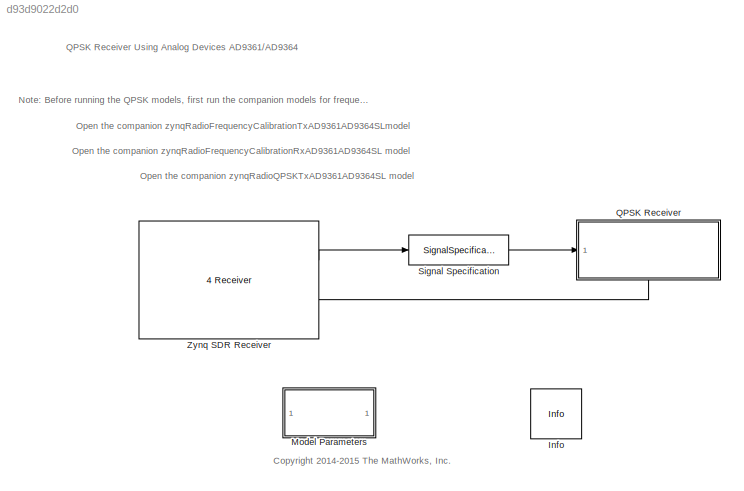
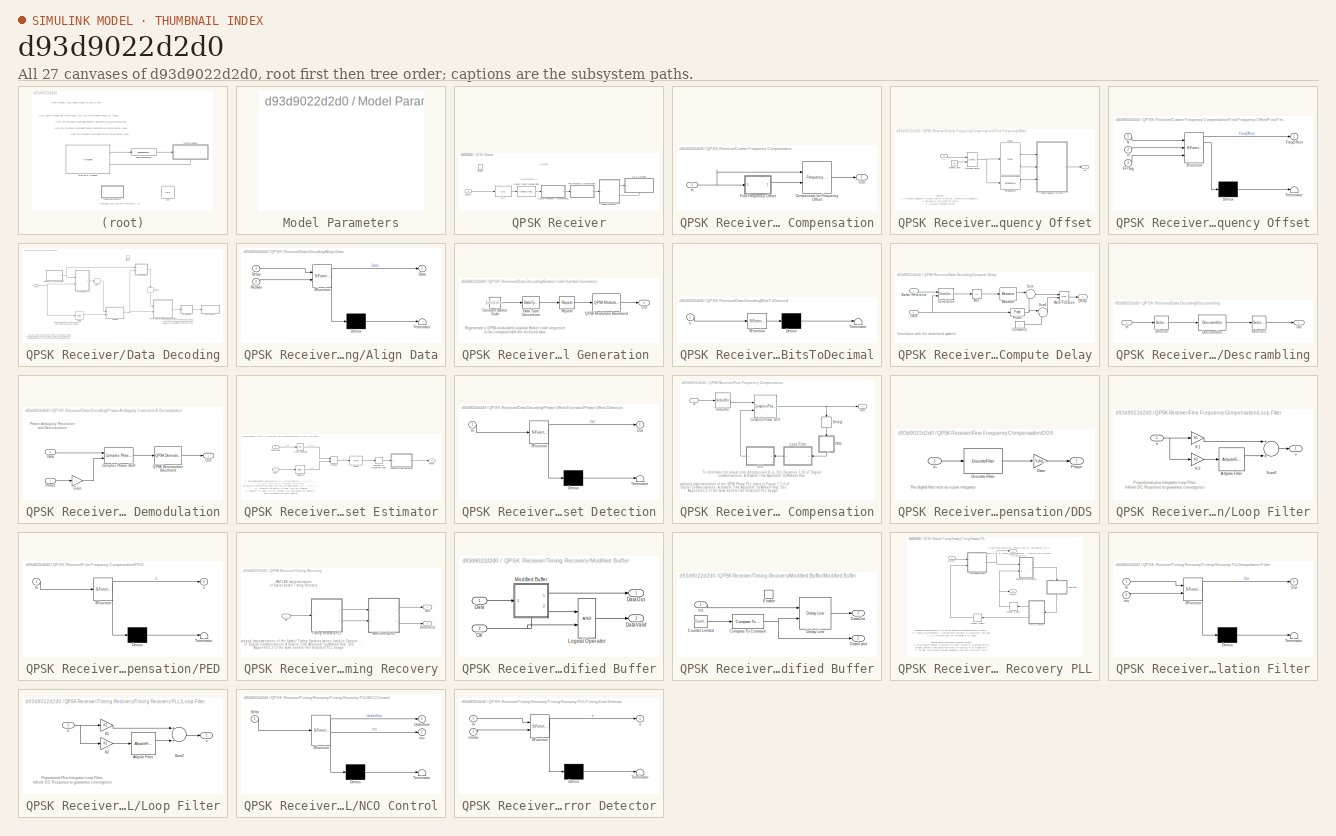
[diagram: thumbnail index - all 27 canvases of the model, root first then tree order]
MODEL slx_d93d9022d2d0
KIND model
CONFIG AbsTol = auto
CONFIG FixedStep = auto
CONFIG InitFcn = sdrqpskrx = zynqRadioQPSKRxAD9361AD9364SL_init;
CONFIG MaxStep = auto
CONFIG MinStep = auto
CONFIG PreLoadFcn = sdrqpskrx = zynqRadioQPSKRxAD9361AD9364SL_init;
CONFIG RelTol = 1e-3
CONFIG SampleTimeConstraint = Unconstrained
CONFIG Solver = FixedStepDiscrete
CONFIG SolverMode = SingleTasking
CONFIG SolverName = FixedStepDiscrete
CONFIG StartTime = 0.0
CONFIG StopTime = inf
BLOCK [Reference] Info  REF=sdrzblksprivate/Info
  Ports = []
  SourceBlock = sdrzblksprivate/Info
  SourceType = Info
BLOCK [SubSystem] Model Parameters
  Ports = []
  RequestExecContextInheritance = off
  Variant = off
BLOCK [SubSystem] QPSK Receiver
  Ports = [1, 0, 1]
  RequestExecContextInheritance = off
  Variant = off
BLOCK [Reference] QPSK Receiver/AGC  REF=commrfcorlib/AGC
  Ports = [1, 1]
  SourceBlock = commrfcorlib/AGC
  SourceType = AGC
BLOCK [SubSystem] QPSK Receiver/Coarse Frequency Compensation
  Ports = [1, 1]
  RequestExecContextInheritance = off
  Variant = off
BLOCK [Reference] QPSK Receiver/Coarse Frequency Compensation/Compensate for Frequency Offset  REF=commrflib2/Phase//
Frequency
Offset
  Ports = [2, 1]
  SourceBlock = commrflib2/Phase//\nFrequency\nOffset
  SourceType = Phase/Frequency Offset
BLOCK [SubSystem] QPSK Receiver/Coarse Frequency Compensation/Find Frequency Offset
  Ports = [1, 1]
  RequestExecContextInheritance = off
  Variant = off
BLOCK [Constant] QPSK Receiver/Coarse Frequency Compensation/Find Frequency Offset/Alphabet size
  OutDataTypeStr = Inherit: Inherit via back propagation
  Value = M
BLOCK [Reference] QPSK Receiver/Coarse Frequency Compensation/Find Frequency Offset/Complex Power  REF=commblksprivate/Complex Power
  Ports = [2, 1]
  SourceBlock = commblksprivate/Complex Power
  SourceType = Complex Power
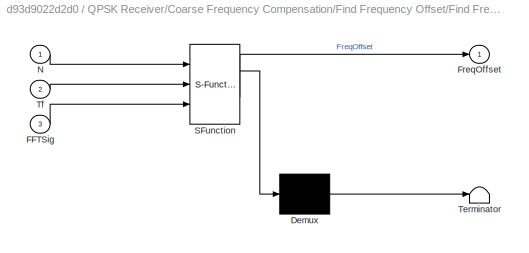
BLOCK [SubSystem] QPSK Receiver/Coarse Frequency Compensation/Find Frequency Offset/Find Frequency Offset
  ErrorFcn = Stateflow.Translate.translate
  PermitHierarchicalResolution = ExplicitOnly
  Ports = [3, 1]
  RequestExecContextInheritance = off
  SFBlockType = MATLAB Function
  TreatAsAtomicUnit = on
  Variant = off
BLOCK [Demux] QPSK Receiver/Coarse Frequency Compensation/Find Frequency Offset/Find Frequency Offset/ Demux 
  Outputs = 1
  Ports = [1, 1]
BLOCK [S-Function] QPSK Receiver/Coarse Frequency Compensation/Find Frequency Offset/Find Frequency Offset/ SFunction 
  EnableBusSupport = off
  FunctionName = sf_sfun
  Parameters = M
  PortCounts = [3 2]
  Ports = [3, 2]
  SFunctionDeploymentMode = off
  Tag = Stateflow S-Function zynqRadioQPSKRxAD9361AD9364SL 1
BLOCK [Terminator] QPSK Receiver/Coarse Frequency Compensation/Find Frequency Offset/Find Frequency Offset/ Terminator 
BLOCK [Inport] QPSK Receiver/Coarse Frequency Compensation/Find Frequency Offset/Find Frequency Offset/FFTSig
  IconDisplay = Port number
  Port = 3
BLOCK [Outport] QPSK Receiver/Coarse Frequency Compensation/Find Frequency Offset/Find Frequency Offset/FreqOffset
  IconDisplay = Port number
BLOCK [Inport] QPSK Receiver/Coarse Frequency Compensation/Find Frequency Offset/Find Frequency Offset/N
  IconDisplay = Port number
BLOCK [Inport] QPSK Receiver/Coarse Frequency Compensation/Find Frequency Offset/Find Frequency Offset/Tf
  IconDisplay = Port number
  Port = 2
BLOCK [Outport] QPSK Receiver/Coarse Frequency Compensation/Find Frequency Offset/Frq
  IconDisplay = Port number
BLOCK [Inport] QPSK Receiver/Coarse Frequency Compensation/Find Frequency Offset/In
  IconDisplay = Port number
BLOCK [Reference] QPSK Receiver/Coarse Frequency Compensation/Find Frequency Offset/Periodogram  REF=dspspect3/Periodogram
  Ports = [1, 1]
  SourceBlock = dspspect3/Periodogram
  SourceType = Periodogram
BLOCK [Probe] QPSK Receiver/Coarse Frequency Compensation/Find Frequency Offset/Probe
  Ports = [1, 2]
  ProbeComplexSignal = off
BLOCK [Inport] QPSK Receiver/Coarse Frequency Compensation/In
  IconDisplay = Port number
BLOCK [Outport] QPSK Receiver/Coarse Frequency Compensation/Out
  IconDisplay = Port number
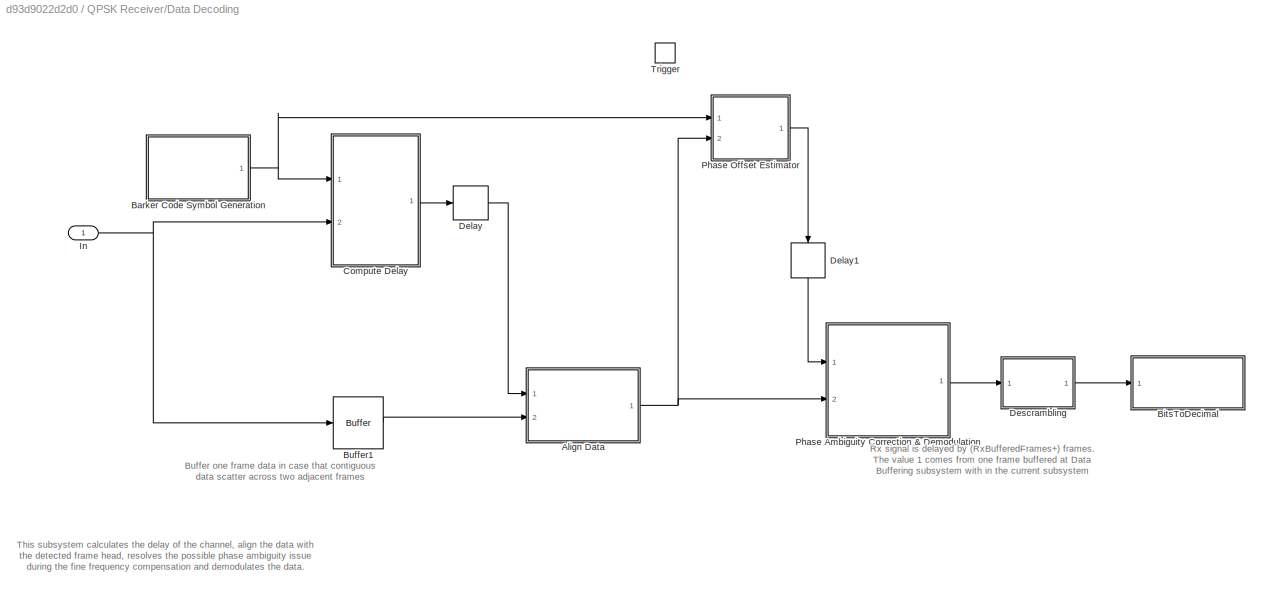
BLOCK [SubSystem] QPSK Receiver/Data Decoding
  Ports = [1, 0, 0, 1]
  RequestExecContextInheritance = off
  Variant = off
BLOCK [SubSystem] QPSK Receiver/Data Decoding/Align Data
  ErrorFcn = Stateflow.Translate.translate
  PermitHierarchicalResolution = ExplicitOnly
  Ports = [2, 1]
  RequestExecContextInheritance = off
  SFBlockType = MATLAB Function
  TreatAsAtomicUnit = on
  Variant = off
BLOCK [Demux] QPSK Receiver/Data Decoding/Align Data/ Demux 
  Outputs = 1
  Ports = [1, 1]
BLOCK [S-Function] QPSK Receiver/Data Decoding/Align Data/ SFunction 
  EnableBusSupport = off
  FunctionName = sf_sfun
  PortCounts = [2 2]
  Ports = [2, 2]
  SFunctionDeploymentMode = off
  Tag = Stateflow S-Function zynqRadioQPSKRxAD9361AD9364SL 2
BLOCK [Terminator] QPSK Receiver/Data Decoding/Align Data/ Terminator 
BLOCK [Outport] QPSK Receiver/Data Decoding/Align Data/Data
  IconDisplay = Port number
BLOCK [Inport] QPSK Receiver/Data Decoding/Align Data/Delay
  IconDisplay = Port number
BLOCK [Inport] QPSK Receiver/Data Decoding/Align Data/RxData
  IconDisplay = Port number
  Port = 2
BLOCK [SubSystem] QPSK Receiver/Data Decoding/Barker Code Symbol Generation 
  Ports = [0, 1]
  RequestExecContextInheritance = off
  Variant = off
BLOCK [Constant] QPSK Receiver/Data Decoding/Barker Code Symbol Generation /Constant Barker Code
  Value = [+1 +1 +1 +1 +1 -1 -1 +1 +1 -1 +1 -1 +1\n].' > 0
  VectorParams1D = off
BLOCK [DataTypeConversion] QPSK Receiver/Data Decoding/Barker Code Symbol Generation /Data Type Conversion
  OutDataTypeStr = double
  RndMeth = Floor
  SaturateOnIntegerOverflow = off
BLOCK [Outport] QPSK Receiver/Data Decoding/Barker Code Symbol Generation /Out
  IconDisplay = Port number
BLOCK [Reference] QPSK Receiver/Data Decoding/Barker Code Symbol Generation /QPSK Modulator Baseband  REF=commdigbbndpm3/QPSK
Modulator
Baseband
  Ports = [1, 1]
  SourceBlock = commdigbbndpm3/QPSK\nModulator\nBaseband
  SourceType = QPSK Modulator Baseband
BLOCK [Reference] QPSK Receiver/Data Decoding/Barker Code Symbol Generation /Repeat  REF=dspsigops/Repeat
  Ports = [1, 1]
  SourceBlock = dspsigops/Repeat
  SourceType = Repeat
  UserDataPersistent = on
BLOCK [SubSystem] QPSK Receiver/Data Decoding/BitsToDecimal
  ErrorFcn = Stateflow.Translate.translate
  PermitHierarchicalResolution = ExplicitOnly
  Ports = [1]
  RequestExecContextInheritance = off
  SFBlockType = MATLAB Function
  TreatAsAtomicUnit = on
  Variant = off
BLOCK [Demux] QPSK Receiver/Data Decoding/BitsToDecimal/ Demux 
  Outputs = 1
  Ports = [1, 1]
BLOCK [S-Function] QPSK Receiver/Data Decoding/BitsToDecimal/ SFunction 
  EnableBusSupport = off
  FunctionName = sf_sfun
  PortCounts = [1 1]
  Ports = [1, 1]
  SFunctionDeploymentMode = off
  Tag = Stateflow S-Function zynqRadioQPSKRxAD9361AD9364SL 5
BLOCK [Terminator] QPSK Receiver/Data Decoding/BitsToDecimal/ Terminator 
BLOCK [Inport] QPSK Receiver/Data Decoding/BitsToDecimal/u
  IconDisplay = Port number
BLOCK [Buffer] QPSK Receiver/Data Decoding/Buffer1
  N = sdrqpskrx.FrameSize*2
  OutputFrames = off
  TreatMby1Signals = One channel
  V = sdrqpskrx.FrameSize
BLOCK [SubSystem] QPSK Receiver/Data Decoding/Compute Delay
  Ports = [2, 1]
  RequestExecContextInheritance = off
  Variant = off
BLOCK [Abs] QPSK Receiver/Data Decoding/Compute Delay/Abs
  SaturateOnIntegerOverflow = off
BLOCK [Inport] QPSK Receiver/Data Decoding/Compute Delay/Barker Reference
  IconDisplay = Port number
BLOCK [Constant] QPSK Receiver/Data Decoding/Compute Delay/Constant1
  FramePeriod = 2
  OutDataTypeStr = Inherit: Inherit via back propagation
  VectorParams1D = off
BLOCK [Reference] QPSK Receiver/Data Decoding/Compute Delay/Correlation  REF=dspstat3/Correlation
  Ports = [2, 1]
  SourceBlock = dspstat3/Correlation
  SourceType = Correlation
BLOCK [Inport] QPSK Receiver/Data Decoding/Compute Delay/Data
  IconDisplay = Port number
  Port = 2
BLOCK [Outport] QPSK Receiver/Data Decoding/Compute Delay/Delay
  IconDisplay = Port number
BLOCK [Math] QPSK Receiver/Data Decoding/Compute Delay/Math Function
  Operator = mod
  Ports = [2, 1]
BLOCK [Reference] QPSK Receiver/Data Decoding/Compute Delay/Maximum  REF=dspstat3/Maximum
  Ports = [1, 1]
  SourceBlock = dspstat3/Maximum
  SourceType = Maximum
  UserDataPersistent = on
BLOCK [Probe] QPSK Receiver/Data Decoding/Compute Delay/Probe
  Ports = [1, 1]
  ProbeComplexSignal = off
  ProbeSampleTime = off
BLOCK [Sum] QPSK Receiver/Data Decoding/Compute Delay/Sum
  IconShape = round
  Inputs = |-+
  Ports = [2, 1]
BLOCK [Sum] QPSK Receiver/Data Decoding/Compute Delay/Sum1
  IconShape = round
  Inputs = |+-
  Ports = [2, 1]
BLOCK [Delay] QPSK Receiver/Data Decoding/Delay
  DelayLength = 1
  InputPortMap = u0
  Ports = [1, 1]
BLOCK [Delay] QPSK Receiver/Data Decoding/Delay1
  DelayLength = 1
  InputPortMap = u0
  Ports = [1, 1]
BLOCK [SubSystem] QPSK Receiver/Data Decoding/Descrambling
  Ports = [1, 1]
  RequestExecContextInheritance = off
  Variant = off
BLOCK [Reference] QPSK Receiver/Data Decoding/Descrambling/Descrambler  REF=commsequence2/Descrambler
  Ports = [1, 1]
  SourceBlock = commsequence2/Descrambler
  SourceType = Descrambler
BLOCK [Inport] QPSK Receiver/Data Decoding/Descrambling/In
  IconDisplay = Port number
BLOCK [Outport] QPSK Receiver/Data Decoding/Descrambling/Out
  IconDisplay = Port number
BLOCK [Selector] QPSK Receiver/Data Decoding/Descrambling/Selector
  IndexOptions = Index vector (dialog)
  Indices = [sdrqpskrx.BarkerLength*log2(sdrqpskrx.M)+1:sdrqpskrx.FrameSize*log2(sdrqpskrx.M)]
  OutputSizes = 1
  Ports = [1, 1]
BLOCK [Selector] QPSK Receiver/Data Decoding/Descrambling/Selector1
  IndexOptions = Index vector (dialog)
  Indices = [1:sdrqpskrx.MsgLength]
  OutputSizes = 1
  Ports = [1, 1]
BLOCK [Inport] QPSK Receiver/Data Decoding/In
  IconDisplay = Port number
BLOCK [SubSystem] QPSK Receiver/Data Decoding/Phase Ambiguity Correction & Demodulation
  Ports = [2, 1]
  RequestExecContextInheritance = off
  Variant = off
BLOCK [Reference] QPSK Receiver/Data Decoding/Phase Ambiguity Correction & Demodulation/Complex Phase Shift  REF=commutil2/Complex Phase
Shift
  Ports = [2, 1]
  SourceBlock = commutil2/Complex Phase\nShift
  SourceType = Complex Phase Shift
BLOCK [Inport] QPSK Receiver/Data Decoding/Phase Ambiguity Correction & Demodulation/Data
  IconDisplay = Port number
  Port = 2
BLOCK [Gain] QPSK Receiver/Data Decoding/Phase Ambiguity Correction & Demodulation/Gain
  Gain = -1
  OutDataTypeStr = Inherit: Inherit via internal rule
  ParamDataTypeStr = Inherit: Inherit via internal rule
  SaturateOnIntegerOverflow = off
BLOCK [Outport] QPSK Receiver/Data Decoding/Phase Ambiguity Correction & Demodulation/Out
  IconDisplay = Port number
BLOCK [Inport] QPSK Receiver/Data Decoding/Phase Ambiguity Correction & Demodulation/Phase
  IconDisplay = Port number
BLOCK [Reference] QPSK Receiver/Data Decoding/Phase Ambiguity Correction & Demodulation/QPSK Demodulator Baseband  REF=commdigbbndpm3/QPSK
Demodulator
Baseband
  Ports = [1, 1]
  SourceBlock = commdigbbndpm3/QPSK\nDemodulator\nBaseband
  SourceType = QPSK Demodulator Baseband
BLOCK [SubSystem] QPSK Receiver/Data Decoding/Phase Offset Estimator
  Ports = [2, 1]
  RequestExecContextInheritance = off
  Variant = off
BLOCK [Inport] QPSK Receiver/Data Decoding/Phase Offset Estimator/BarkerRef
  IconDisplay = Port number
BLOCK [ComplexToMagnitudeAngle] QPSK Receiver/Data Decoding/Phase Offset Estimator/Complex to Magnitude-Angle
  Output = Angle
  Ports = [1, 1]
BLOCK [Inport] QPSK Receiver/Data Decoding/Phase Offset Estimator/Data
  IconDisplay = Port number
  Port = 2
BLOCK [Math] QPSK Receiver/Data Decoding/Phase Offset Estimator/Math Function
  Operator = conj
  Ports = [1, 1]
BLOCK [Reference] QPSK Receiver/Data Decoding/Phase Offset Estimator/Mean  REF=dspstat3/Mean
  Ports = [1, 1]
  SourceBlock = dspstat3/Mean
  SourceType = Mean
  UserDataPersistent = on
BLOCK [Outport] QPSK Receiver/Data Decoding/Phase Offset Estimator/Phase
  IconDisplay = Port number
BLOCK [SubSystem] QPSK Receiver/Data Decoding/Phase Offset Estimator/Phase Offset Detection
  ErrorFcn = Stateflow.Translate.translate
  PermitHierarchicalResolution = ExplicitOnly
  Ports = [1, 1]
  RequestExecContextInheritance = off
  SFBlockType = MATLAB Function
  TreatAsAtomicUnit = on
  Variant = off
BLOCK [Demux] QPSK Receiver/Data Decoding/Phase Offset Estimator/Phase Offset Detection/ Demux 
  Outputs = 1
  Ports = [1, 1]
BLOCK [S-Function] QPSK Receiver/Data Decoding/Phase Offset Estimator/Phase Offset Detection/ SFunction 
  EnableBusSupport = off
  FunctionName = sf_sfun
  PortCounts = [1 2]
  Ports = [1, 2]
  SFunctionDeploymentMode = off
  Tag = Stateflow S-Function zynqRadioQPSKRxAD9361AD9364SL 6
BLOCK [Terminator] QPSK Receiver/Data Decoding/Phase Offset Estimator/Phase Offset Detection/ Terminator 
BLOCK [Inport] QPSK Receiver/Data Decoding/Phase Offset Estimator/Phase Offset Detection/In
  IconDisplay = Port number
BLOCK [Outport] QPSK Receiver/Data Decoding/Phase Offset Estimator/Phase Offset Detection/Out
  IconDisplay = Port number
BLOCK [Product] QPSK Receiver/Data Decoding/Phase Offset Estimator/Product
  InputSameDT = off
  OutDataTypeStr = Inherit: Inherit via internal rule
  Ports = [2, 1]
  SaturateOnIntegerOverflow = off
BLOCK [Selector] QPSK Receiver/Data Decoding/Phase Offset Estimator/Selector
  IndexOptions = Index vector (dialog)
  Indices = [1:sdrqpskrx.BarkerLength]
  OutputSizes = 1
  Ports = [1, 1]
BLOCK [TriggerPort] QPSK Receiver/Data Decoding/Trigger
  PortDimensions = 1
  Ports = []
  StatesWhenEnabling = held
  VariantControl = Variant
BLOCK [EnablePort] QPSK Receiver/Enable
  Ports = []
BLOCK [SubSystem] QPSK Receiver/Fine Frequency Compensation
  Ports = [1, 1]
  RequestExecContextInheritance = off
  Variant = off
BLOCK [Reference] QPSK Receiver/Fine Frequency Compensation/Complex Phase Shift  REF=commutil2/Complex Phase
Shift
  Ports = [2, 1]
  SourceBlock = commutil2/Complex Phase\nShift
  SourceType = Complex Phase Shift
BLOCK [SubSystem] QPSK Receiver/Fine Frequency Compensation/DDS
  Ports = [1, 1]
  RequestExecContextInheritance = off
  Variant = off
BLOCK [DiscreteFilter] QPSK Receiver/Fine Frequency Compensation/DDS/Discrete Filter
  Denominator = [1 -1]
  FilterStructure = Direct form II transposed
  InputPortMap = u0
  InputProcessing = Columns as channels (frame based)
  Numerator = [0 1]
  Ports = [1, 1]
  a0EqualsOne = on
BLOCK [Gain] QPSK Receiver/Fine Frequency Compensation/DDS/Gain
  Gain = -1*sdrqpskrx.FineFreqCompensateGain
  OutDataTypeStr = Inherit: Inherit via internal rule
  ParamDataTypeStr = Inherit: Inherit via internal rule
  SaturateOnIntegerOverflow = off
BLOCK [Inport] QPSK Receiver/Fine Frequency Compensation/DDS/In
  IconDisplay = Port number
BLOCK [Outport] QPSK Receiver/Fine Frequency Compensation/DDS/Phase
  IconDisplay = Port number
BLOCK [Delay] QPSK Receiver/Fine Frequency Compensation/Delay1
  DelayLength = 1
  InitialCondition = 0
  InputPortMap = u0
  InputProcessing = Columns as channels (frame based)
  Ports = [1, 1]
  UserDataPersistent = on
BLOCK [Inport] QPSK Receiver/Fine Frequency Compensation/In
  IconDisplay = Port number
BLOCK [SubSystem] QPSK Receiver/Fine Frequency Compensation/Loop Filter
  Ports = [1, 1]
  RequestExecContextInheritance = off
  Variant = off
BLOCK [AllpoleFilter] QPSK Receiver/Fine Frequency Compensation/Loop Filter/Allpole Filter
  AccumDataTypeStr = Inherit: Same as product output
  Coefficients = [1 -1]
  FilterStructure = Direct form transposed
  InputPortMap = u0
  OutDataTypeStr = Inherit: Same as accumulator
  OutputPortMap = o0
  Ports = [1, 1]
  ProductDataTypeStr = Inherit: Same as input
BLOCK [Gain] QPSK Receiver/Fine Frequency Compensation/Loop Filter/K1
  Gain = K1
  OutDataTypeStr = Inherit: Inherit via internal rule
  ParamDataTypeStr = Inherit: Inherit via internal rule
  SaturateOnIntegerOverflow = off
BLOCK [Gain] QPSK Receiver/Fine Frequency Compensation/Loop Filter/K2
  Gain = K2
  OutDataTypeStr = Inherit: Inherit via internal rule
  ParamDataTypeStr = Inherit: Inherit via internal rule
  SaturateOnIntegerOverflow = off
BLOCK [Sum] QPSK Receiver/Fine Frequency Compensation/Loop Filter/Sum2
  Ports = [2, 1]
BLOCK [Inport] QPSK Receiver/Fine Frequency Compensation/Loop Filter/e
  IconDisplay = Port number
BLOCK [Outport] QPSK Receiver/Fine Frequency Compensation/Loop Filter/v
  IconDisplay = Port number
BLOCK [Outport] QPSK Receiver/Fine Frequency Compensation/Out
  IconDisplay = Port number
BLOCK [SubSystem] QPSK Receiver/Fine Frequency Compensation/PED
  ErrorFcn = Stateflow.Translate.translate
  PermitHierarchicalResolution = ExplicitOnly
  Ports = [1, 1]
  RequestExecContextInheritance = off
  SFBlockType = MATLAB Function
  TreatAsAtomicUnit = on
  Variant = off
BLOCK [Demux] QPSK Receiver/Fine Frequency Compensation/PED/ Demux 
  Outputs = 1
  Ports = [1, 1]
BLOCK [S-Function] QPSK Receiver/Fine Frequency Compensation/PED/ SFunction 
  EnableBusSupport = off
  FunctionName = sf_sfun
  PortCounts = [1 2]
  Ports = [1, 2]
  SFunctionDeploymentMode = off
  Tag = Stateflow S-Function zynqRadioQPSKRxAD9361AD9364SL 7
BLOCK [Terminator] QPSK Receiver/Fine Frequency Compensation/PED/ Terminator 
BLOCK [Inport] QPSK Receiver/Fine Frequency Compensation/PED/In
  IconDisplay = Port number
BLOCK [Outport] QPSK Receiver/Fine Frequency Compensation/PED/e
  IconDisplay = Port number
BLOCK [Unbuffer] QPSK Receiver/Fine Frequency Compensation/Unbuffer
  Ports = [1, 1]
  SampleBasedProcessing = Same as frame based
BLOCK [Reference] QPSK Receiver/Raised Cosine Receive Filter  REF=commfilt2/Raised Cosine
Receive Filter
  Ports = [1, 1]
  SourceBlock = commfilt2/Raised Cosine\nReceive Filter
  SourceType = Raised Cosine Receive Filter
  UserDataPersistent = on
BLOCK [SubSystem] QPSK Receiver/Timing Recovery
  Ports = [1, 2]
  RequestExecContextInheritance = off
  Variant = off
BLOCK [Outport] QPSK Receiver/Timing Recovery/DataValid
  IconDisplay = Port number
  Port = 2
BLOCK [Inport] QPSK Receiver/Timing Recovery/In
  IconDisplay = Port number
BLOCK [SubSystem] QPSK Receiver/Timing Recovery/Modified Buffer
  Ports = [2, 2]
  RequestExecContextInheritance = off
  TreatAsAtomicUnit = on
  Variant = off
BLOCK [Inport] QPSK Receiver/Timing Recovery/Modified Buffer/Clk
  IconDisplay = Port number
  Port = 2
BLOCK [Inport] QPSK Receiver/Timing Recovery/Modified Buffer/Data
  IconDisplay = Port number
BLOCK [Outport] QPSK Receiver/Timing Recovery/Modified Buffer/DataOut
  IconDisplay = Port number
BLOCK [Outport] QPSK Receiver/Timing Recovery/Modified Buffer/DataValid
  IconDisplay = Port number
  Port = 2
BLOCK [Logic] QPSK Receiver/Timing Recovery/Modified Buffer/Logical Operator
  AllPortsSameDT = off
  OutDataTypeStr = boolean
  Ports = [2, 1]
BLOCK [SubSystem] QPSK Receiver/Timing Recovery/Modified Buffer/Modified Buffer
  Ports = [1, 2, 1]
  RequestExecContextInheritance = off
  Variant = off
BLOCK [Reference] QPSK Receiver/Timing Recovery/Modified Buffer/Modified Buffer/Compare To Constant  REF=simulink/Logic and Bit
Operations/Compare
To Constant
  Ports = [1, 1]
  SourceBlock = simulink/Logic and Bit\nOperations/Compare\nTo Constant
  SourceType = Compare To Constant
BLOCK [Reference] QPSK Receiver/Timing Recovery/Modified Buffer/Modified Buffer/Counter Limited  REF=simulink/Sources/Counter
Limited
  Ports = [0, 1]
  SourceBlock = simulink/Sources/Counter\nLimited
  SourceType = Counter Limited
BLOCK [Outport] QPSK Receiver/Timing Recovery/Modified Buffer/Modified Buffer/DataOut
  IconDisplay = Port number
BLOCK [Outport] QPSK Receiver/Timing Recovery/Modified Buffer/Modified Buffer/DataValid
  IconDisplay = Port number
  Port = 2
BLOCK [Reference] QPSK Receiver/Timing Recovery/Modified Buffer/Modified Buffer/Delay Line  REF=dspbuff3/Delay Line
  Ports = [2, 1]
  SourceBlock = dspbuff3/Delay Line
  SourceType = Delay Line
  UserDataPersistent = on
BLOCK [EnablePort] QPSK Receiver/Timing Recovery/Modified Buffer/Modified Buffer/Enable
  Ports = []
BLOCK [Inport] QPSK Receiver/Timing Recovery/Modified Buffer/Modified Buffer/In1
  IconDisplay = Port number
BLOCK [Outport] QPSK Receiver/Timing Recovery/Out
  IconDisplay = Port number
BLOCK [SubSystem] QPSK Receiver/Timing Recovery/Timing Recovery PLL
  Ports = [1, 2]
  RequestExecContextInheritance = off
  Variant = off
BLOCK [Outport] QPSK Receiver/Timing Recovery/Timing Recovery PLL/ClkOut
  IconDisplay = Port number
  Port = 2
BLOCK [Inport] QPSK Receiver/Timing Recovery/Timing Recovery PLL/DataIn
  IconDisplay = Port number
BLOCK [Outport] QPSK Receiver/Timing Recovery/Timing Recovery PLL/DataOut
  IconDisplay = Port number
BLOCK [Delay] QPSK Receiver/Timing Recovery/Timing Recovery PLL/Integer Delay1
  DelayLength = 1
  InputPortMap = u0
  InputProcessing = Inherited
  Ports = [1, 1]
  UserDataPersistent = on
BLOCK [Delay] QPSK Receiver/Timing Recovery/Timing Recovery PLL/Integer Delay2
  DelayLength = 1
  InputPortMap = u0
  InputProcessing = Inherited
  Ports = [1, 1]
  UserDataPersistent = on
BLOCK [SubSystem] QPSK Receiver/Timing Recovery/Timing Recovery PLL/Interpolation Filter
  ErrorFcn = Stateflow.Translate.translate
  PermitHierarchicalResolution = ExplicitOnly
  Ports = [2, 1]
  RequestExecContextInheritance = off
  SFBlockType = MATLAB Function
  TreatAsAtomicUnit = on
  Variant = off
BLOCK [Demux] QPSK Receiver/Timing Recovery/Timing Recovery PLL/Interpolation Filter/ Demux 
  Outputs = 1
  Ports = [1, 1]
BLOCK [S-Function] QPSK Receiver/Timing Recovery/Timing Recovery PLL/Interpolation Filter/ SFunction 
  EnableBusSupport = off
  FunctionName = sf_sfun
  PortCounts = [2 2]
  Ports = [2, 2]
  SFunctionDeploymentMode = off
  Tag = Stateflow S-Function zynqRadioQPSKRxAD9361AD9364SL 10
BLOCK [Terminator] QPSK Receiver/Timing Recovery/Timing Recovery PLL/Interpolation Filter/ Terminator 
BLOCK [Inport] QPSK Receiver/Timing Recovery/Timing Recovery PLL/Interpolation Filter/In
  IconDisplay = Port number
BLOCK [Outport] QPSK Receiver/Timing Recovery/Timing Recovery PLL/Interpolation Filter/Out
  IconDisplay = Port number
BLOCK [Inport] QPSK Receiver/Timing Recovery/Timing Recovery PLL/Interpolation Filter/mu
  IconDisplay = Port number
  Port = 2
BLOCK [SubSystem] QPSK Receiver/Timing Recovery/Timing Recovery PLL/Loop Filter
  Ports = [1, 1]
  RequestExecContextInheritance = off
  Variant = off
BLOCK [AllpoleFilter] QPSK Receiver/Timing Recovery/Timing Recovery PLL/Loop Filter/Allpole Filter
  AccumDataTypeStr = Inherit: Same as product output
  Coefficients = [1 -1]
  FilterStructure = Direct form transposed
  InputPortMap = u0
  OutDataTypeStr = Inherit: Same as accumulator
  OutputPortMap = o0
  Ports = [1, 1]
  ProductDataTypeStr = Inherit: Same as input
BLOCK [Gain] QPSK Receiver/Timing Recovery/Timing Recovery PLL/Loop Filter/K1
  Gain = K1
  OutDataTypeStr = Inherit: Inherit via internal rule
  ParamDataTypeStr = Inherit: Inherit via internal rule
  SaturateOnIntegerOverflow = off
BLOCK [Gain] QPSK Receiver/Timing Recovery/Timing Recovery PLL/Loop Filter/K2
  Gain = K2
  OutDataTypeStr = Inherit: Inherit via internal rule
  ParamDataTypeStr = Inherit: Inherit via internal rule
  SaturateOnIntegerOverflow = off
BLOCK [Sum] QPSK Receiver/Timing Recovery/Timing Recovery PLL/Loop Filter/Sum2
  Ports = [2, 1]
BLOCK [Inport] QPSK Receiver/Timing Recovery/Timing Recovery PLL/Loop Filter/e
  IconDisplay = Port number
BLOCK [Outport] QPSK Receiver/Timing Recovery/Timing Recovery PLL/Loop Filter/v
  IconDisplay = Port number
BLOCK [SubSystem] QPSK Receiver/Timing Recovery/Timing Recovery PLL/NCO Control
  ErrorFcn = Stateflow.Translate.translate
  PermitHierarchicalResolution = ExplicitOnly
  Ports = [1, 2]
  RequestExecContextInheritance = off
  SFBlockType = MATLAB Function
  Variant = off
BLOCK [Demux] QPSK Receiver/Timing Recovery/Timing Recovery PLL/NCO Control/ Demux 
  Outputs = 1
  Ports = [1, 1]
BLOCK [S-Function] QPSK Receiver/Timing Recovery/Timing Recovery PLL/NCO Control/ SFunction 
  EnableBusSupport = off
  FunctionName = sf_sfun
  Parameters = sdrqpskrx
  PortCounts = [1 3]
  Ports = [1, 3]
  SFunctionDeploymentMode = off
  Tag = Stateflow S-Function zynqRadioQPSKRxAD9361AD9364SL 11
BLOCK [Terminator] QPSK Receiver/Timing Recovery/Timing Recovery PLL/NCO Control/ Terminator 
BLOCK [Inport] QPSK Receiver/Timing Recovery/Timing Recovery PLL/NCO Control/Delta
  IconDisplay = Port number
BLOCK [Outport] QPSK Receiver/Timing Recovery/Timing Recovery PLL/NCO Control/Underflow
  IconDisplay = Port number
BLOCK [Outport] QPSK Receiver/Timing Recovery/Timing Recovery PLL/NCO Control/mu
  IconDisplay = Port number
  Port = 2
BLOCK [SubSystem] QPSK Receiver/Timing Recovery/Timing Recovery PLL/Timing Error Detector
  ErrorFcn = Stateflow.Translate.translate
  PermitHierarchicalResolution = ExplicitOnly
  Ports = [2, 1]
  RequestExecContextInheritance = off
  SFBlockType = MATLAB Function
  TreatAsAtomicUnit = on
  Variant = off
BLOCK [Demux] QPSK Receiver/Timing Recovery/Timing Recovery PLL/Timing Error Detector/ Demux 
  Outputs = 1
  Ports = [1, 1]
BLOCK [S-Function] QPSK Receiver/Timing Recovery/Timing Recovery PLL/Timing Error Detector/ SFunction 
  EnableBusSupport = off
  FunctionName = sf_sfun
  PortCounts = [2 2]
  Ports = [2, 2]
  SFunctionDeploymentMode = off
  Tag = Stateflow S-Function zynqRadioQPSKRxAD9361AD9364SL 15
BLOCK [Terminator] QPSK Receiver/Timing Recovery/Timing Recovery PLL/Timing Error Detector/ Terminator 
BLOCK [Inport] QPSK Receiver/Timing Recovery/Timing Recovery PLL/Timing Error Detector/In
  IconDisplay = Port number
BLOCK [Outport] QPSK Receiver/Timing Recovery/Timing Recovery PLL/Timing Error Detector/e
  IconDisplay = Port number
BLOCK [Inport] QPSK Receiver/Timing Recovery/Timing Recovery PLL/Timing Error Detector/strobe
  IconDisplay = Port number
  Port = 2
BLOCK [Inport] QPSK Receiver/dataIn
  IconDisplay = Port number
BLOCK [SignalSpecification] Signal Specification
  SampleTime = sdrqpskrx.RadioFrameSize/sdrqpskrx.Fs
BLOCK [Reference] Zynq SDR Receiver  REF=zc706fmc234_lib/ZC706 and 
FMCOMMS2//3//4 
Receiver
  Ports = [0, 2]
  SourceBlock = zc706fmc234_lib/ZC706 and \nFMCOMMS2//3//4 \nReceiver
  SourceType = comm.internal.SDRRxZC706FMC234SL
ANNOTATION (root): <copyright redacted>
ANNOTATION (root): Note: Before running the QPSK models, first run the companion models for frequency offset calibration.
ANNOTATION (root): Open the companion zynqRadioFrequencyCalibrationRxAD9361AD9364SL model
ANNOTATION (root): Open the companion zynqRadioFrequencyCalibrationTxAD9361AD9364SLmodel
ANNOTATION (root): Open the companion zynqRadioQPSKTxAD9361AD9364SL model
ANNOTATION (root): QPSK Receiver Using Analog Devices AD9361/AD9364
ANNOTATION QPSK Receiver: Oversampled by 2
ANNOTATION QPSK Receiver: Receiver
ANNOTATION QPSK Receiver/Coarse Frequency Compensation/Find Frequency Offset: Algorithm: 1. Introduce nonlinearity to create tone at M*Foffset, where M is modulation order 2. Find index of tone within FFT vector 3. Compute frequency offset
ANNOTATION QPSK Receiver/Data Decoding: Buffer one frame data in case that contiguous data scatter across two adjacent frames
ANNOTATION QPSK Receiver/Data Decoding: Rx signal is delayed by (RxBufferedFrames+) frames. The value 1 comes from one frame buffered at Data Buffering subsystem with in the current subsystem
ANNOTATION QPSK Receiver/Data Decoding: This subsystem calculates the delay of the channel, align the data with the detected frame head, resolves the possible phase ambiguity issue during the fine frequency compensation and demodulates the data.
ANNOTATION QPSK Receiver/Data Decoding/Barker Code Symbol Generation : Regenerate a QPSK-modulated unipolar Barker code sequence to be compared with the received data
ANNOTATION QPSK Receiver/Data Decoding/Compute Delay: Correlation with the modulated symbols
ANNOTATION QPSK Receiver/Data Decoding/Phase Ambiguity Correction & Demodulation: Phase Ambiguity Resolution and Demodulation
ANNOTATION QPSK Receiver/Data Decoding/Phase Offset Estimator: 1. The original signal is expressed as y(t) = x(t)e^{j\phi}+n(t), t = 1, 2, ..., N 2. y_1(t) = x{*}(t)y(t) = e^{j\phi} + x{*}(t)n(t) The goal is to estimate the value \phi from the observation y_1(t), t = 1, 2, ...N i.e., estimate the value B = e^{j\phi}, and \phi = angle(B) 3. Suppose n(t) yields to a i.i.d. complex AWGN distribution N(0,\sigma^2). Then a non-biased estimator could be B_{est} = 1...<+91ch>
ANNOTATION QPSK Receiver/Fine Frequency Compensation: Baseband implementation of the QPSK Phase PLL listed in Figure 7.2.4 of "Digital Communications - A Discrete-Time Approach" by Michael Rice. See Appendix C.2 of the same book for the details of PLL design.
ANNOTATION QPSK Receiver/Fine Frequency Compensation: To determine the phase error detector gain K_p, See Equation 7.30 of "Digital Communications - A Discrete-Time Approach" by Michael Rice.
ANNOTATION QPSK Receiver/Fine Frequency Compensation/DDS: The digital filter acts as a pure integrator
ANNOTATION QPSK Receiver/Fine Frequency Compensation/Loop Filter: Proportional-plus-Integrator Loop Filter, Infinite DC Response to guarantee convergence
ANNOTATION QPSK Receiver/Timing Recovery: Baseband implementation of the Symbol Timing Synchronization listed in Chapter 8.4 of "Digital Communications- A Discrete-Time Approach" by Michael Rice. See Appendix C.2 of the same book for the details of PLL design.
ANNOTATION QPSK Receiver/Timing Recovery: MATLAB Implementation of Scalar-based Timing Recovery
ANNOTATION QPSK Receiver/Timing Recovery/Timing Recovery PLL: Baseband implementation of the Symbol Timing Synchronization listed in Chapter 8.4 of "Digital Communications- A Discrete-Time Approach" by Michael Rice. See Appendix C.2 of the same book for the details of PLL design.
ANNOTATION QPSK Receiver/Timing Recovery/Timing Recovery PLL: Sample-based processing is adopted because 1. Strobe signal is required to generate for EVERY sample for processing and output sampling, delayed strobe signal would affect the accuracy of bit stripping/stuffing 2. The BER performance degrades significantly even with frame size 2 and 4
ANNOTATION QPSK Receiver/Timing Recovery/Timing Recovery PLL: To determine phase error detector gain K_p, See Equation 8.42 & Figure 8.4.7 of "Digital Communications - A Discrete-Time Approach" by Michael Rice.
ANNOTATION QPSK Receiver/Timing Recovery/Timing Recovery PLL/Loop Filter: Proportional-Plus-Integrator Loop Filter, Infinite DC Response to guarantee convergence
LINE QPSK Receiver/AGC:1 -> QPSK Receiver/Raised Cosine Receive Filter:1
LINE QPSK Receiver/Coarse Frequency Compensation/Compensate for Frequency Offset:1 -> QPSK Receiver/Coarse Frequency Compensation/Out:1
LINE QPSK Receiver/Coarse Frequency Compensation/Find Frequency Offset/Alphabet size:1 -> QPSK Receiver/Coarse Frequency Compensation/Find Frequency Offset/Complex Power:2
NET QPSK Receiver/Coarse Frequency Compensation/Find Frequency Offset/Complex Power:1 -> QPSK Receiver/Coarse Frequency Compensation/Find Frequency Offset/Periodogram:1, QPSK Receiver/Coarse Frequency Compensation/Find Frequency Offset/Probe:1
LINE QPSK Receiver/Coarse Frequency Compensation/Find Frequency Offset/Find Frequency Offset:1 -> QPSK Receiver/Coarse Frequency Compensation/Find Frequency Offset/Frq:1
LINE QPSK Receiver/Coarse Frequency Compensation/Find Frequency Offset/In:1 -> QPSK Receiver/Coarse Frequency Compensation/Find Frequency Offset/Complex Power:1
LINE QPSK Receiver/Coarse Frequency Compensation/Find Frequency Offset/Periodogram:1 -> QPSK Receiver/Coarse Frequency Compensation/Find Frequency Offset/Find Frequency Offset:3
LINE QPSK Receiver/Coarse Frequency Compensation/Find Frequency Offset/Probe:1 -> QPSK Receiver/Coarse Frequency Compensation/Find Frequency Offset/Find Frequency Offset:1
LINE QPSK Receiver/Coarse Frequency Compensation/Find Frequency Offset/Probe:2 -> QPSK Receiver/Coarse Frequency Compensation/Find Frequency Offset/Find Frequency Offset:2
LINE QPSK Receiver/Coarse Frequency Compensation/Find Frequency Offset:1 -> QPSK Receiver/Coarse Frequency Compensation/Compensate for Frequency Offset:2
NET QPSK Receiver/Coarse Frequency Compensation/In:1 -> QPSK Receiver/Coarse Frequency Compensation/Compensate for Frequency Offset:1, QPSK Receiver/Coarse Frequency Compensation/Find Frequency Offset:1
LINE QPSK Receiver/Coarse Frequency Compensation:1 -> QPSK Receiver/Fine Frequency Compensation:1
NET QPSK Receiver/Data Decoding/Align Data:1 -> QPSK Receiver/Data Decoding/Phase Ambiguity Correction & Demodulation:2, QPSK Receiver/Data Decoding/Phase Offset Estimator:2
LINE QPSK Receiver/Data Decoding/Barker Code Symbol Generation /Constant Barker Code:1 -> QPSK Receiver/Data Decoding/Barker Code Symbol Generation /Data Type Conversion:1
LINE QPSK Receiver/Data Decoding/Barker Code Symbol Generation /Data Type Conversion:1 -> QPSK Receiver/Data Decoding/Barker Code Symbol Generation /Repeat:1
LINE QPSK Receiver/Data Decoding/Barker Code Symbol Generation /QPSK Modulator Baseband:1 -> QPSK Receiver/Data Decoding/Barker Code Symbol Generation /Out:1
LINE QPSK Receiver/Data Decoding/Barker Code Symbol Generation /Repeat:1 -> QPSK Receiver/Data Decoding/Barker Code Symbol Generation /QPSK Modulator Baseband:1
NET QPSK Receiver/Data Decoding/Barker Code Symbol Generation :1 -> QPSK Receiver/Data Decoding/Compute Delay:1, QPSK Receiver/Data Decoding/Phase Offset Estimator:1
LINE QPSK Receiver/Data Decoding/Buffer1:1 -> QPSK Receiver/Data Decoding/Align Data:2
LINE QPSK Receiver/Data Decoding/Compute Delay/Abs:1 -> QPSK Receiver/Data Decoding/Compute Delay/Maximum:1
LINE QPSK Receiver/Data Decoding/Compute Delay/Barker Reference:1 -> QPSK Receiver/Data Decoding/Compute Delay/Correlation:1
LINE QPSK Receiver/Data Decoding/Compute Delay/Constant1:1 -> QPSK Receiver/Data Decoding/Compute Delay/Sum1:2
LINE QPSK Receiver/Data Decoding/Compute Delay/Correlation:1 -> QPSK Receiver/Data Decoding/Compute Delay/Abs:1
NET QPSK Receiver/Data Decoding/Compute Delay/Data:1 -> QPSK Receiver/Data Decoding/Compute Delay/Correlation:2, QPSK Receiver/Data Decoding/Compute Delay/Probe:1
LINE QPSK Receiver/Data Decoding/Compute Delay/Math Function:1 -> QPSK Receiver/Data Decoding/Compute Delay/Delay:1
LINE QPSK Receiver/Data Decoding/Compute Delay/Maximum:1 -> QPSK Receiver/Data Decoding/Compute Delay/Sum:1
NET QPSK Receiver/Data Decoding/Compute Delay/Probe:1 -> QPSK Receiver/Data Decoding/Compute Delay/Sum1:1, QPSK Receiver/Data Decoding/Compute Delay/Sum:2
LINE QPSK Receiver/Data Decoding/Compute Delay/Sum1:1 -> QPSK Receiver/Data Decoding/Compute Delay/Math Function:2
LINE QPSK Receiver/Data Decoding/Compute Delay/Sum:1 -> QPSK Receiver/Data Decoding/Compute Delay/Math Function:1
LINE QPSK Receiver/Data Decoding/Compute Delay:1 -> QPSK Receiver/Data Decoding/Delay:1
LINE QPSK Receiver/Data Decoding/Delay1:1 -> QPSK Receiver/Data Decoding/Phase Ambiguity Correction & Demodulation:1
LINE QPSK Receiver/Data Decoding/Delay:1 -> QPSK Receiver/Data Decoding/Align Data:1
LINE QPSK Receiver/Data Decoding/Descrambling/Descrambler:1 -> QPSK Receiver/Data Decoding/Descrambling/Selector1:1
LINE QPSK Receiver/Data Decoding/Descrambling/In:1 -> QPSK Receiver/Data Decoding/Descrambling/Selector:1
LINE QPSK Receiver/Data Decoding/Descrambling/Selector1:1 -> QPSK Receiver/Data Decoding/Descrambling/Out:1
LINE QPSK Receiver/Data Decoding/Descrambling/Selector:1 -> QPSK Receiver/Data Decoding/Descrambling/Descrambler:1
LINE QPSK Receiver/Data Decoding/Descrambling:1 -> QPSK Receiver/Data Decoding/BitsToDecimal:1
NET QPSK Receiver/Data Decoding/In:1 -> QPSK Receiver/Data Decoding/Buffer1:1, QPSK Receiver/Data Decoding/Compute Delay:2
LINE QPSK Receiver/Data Decoding/Phase Ambiguity Correction & Demodulation/Complex Phase Shift:1 -> QPSK Receiver/Data Decoding/Phase Ambiguity Correction & Demodulation/QPSK Demodulator Baseband:1
LINE QPSK Receiver/Data Decoding/Phase Ambiguity Correction & Demodulation/Data:1 -> QPSK Receiver/Data Decoding/Phase Ambiguity Correction & Demodulation/Complex Phase Shift:1
LINE QPSK Receiver/Data Decoding/Phase Ambiguity Correction & Demodulation/Gain:1 -> QPSK Receiver/Data Decoding/Phase Ambiguity Correction & Demodulation/Complex Phase Shift:2
LINE QPSK Receiver/Data Decoding/Phase Ambiguity Correction & Demodulation/Phase:1 -> QPSK Receiver/Data Decoding/Phase Ambiguity Correction & Demodulation/Gain:1
LINE QPSK Receiver/Data Decoding/Phase Ambiguity Correction & Demodulation/QPSK Demodulator Baseband:1 -> QPSK Receiver/Data Decoding/Phase Ambiguity Correction & Demodulation/Out:1
LINE QPSK Receiver/Data Decoding/Phase Ambiguity Correction & Demodulation:1 -> QPSK Receiver/Data Decoding/Descrambling:1
LINE QPSK Receiver/Data Decoding/Phase Offset Estimator/BarkerRef:1 -> QPSK Receiver/Data Decoding/Phase Offset Estimator/Math Function:1
LINE QPSK Receiver/Data Decoding/Phase Offset Estimator/Complex to Magnitude-Angle:1 -> QPSK Receiver/Data Decoding/Phase Offset Estimator/Phase Offset Detection:1
LINE QPSK Receiver/Data Decoding/Phase Offset Estimator/Data:1 -> QPSK Receiver/Data Decoding/Phase Offset Estimator/Selector:1
LINE QPSK Receiver/Data Decoding/Phase Offset Estimator/Math Function:1 -> QPSK Receiver/Data Decoding/Phase Offset Estimator/Product:1
LINE QPSK Receiver/Data Decoding/Phase Offset Estimator/Mean:1 -> QPSK Receiver/Data Decoding/Phase Offset Estimator/Complex to Magnitude-Angle:1
LINE QPSK Receiver/Data Decoding/Phase Offset Estimator/Phase Offset Detection:1 -> QPSK Receiver/Data Decoding/Phase Offset Estimator/Phase:1
LINE QPSK Receiver/Data Decoding/Phase Offset Estimator/Product:1 -> QPSK Receiver/Data Decoding/Phase Offset Estimator/Mean:1
LINE QPSK Receiver/Data Decoding/Phase Offset Estimator/Selector:1 -> QPSK Receiver/Data Decoding/Phase Offset Estimator/Product:2
LINE QPSK Receiver/Data Decoding/Phase Offset Estimator:1 -> QPSK Receiver/Data Decoding/Delay1:1
NET QPSK Receiver/Fine Frequency Compensation/Complex Phase Shift:1 -> QPSK Receiver/Fine Frequency Compensation/Delay1:1, QPSK Receiver/Fine Frequency Compensation/Out:1
LINE QPSK Receiver/Fine Frequency Compensation/DDS/Discrete Filter:1 -> QPSK Receiver/Fine Frequency Compensation/DDS/Gain:1
LINE QPSK Receiver/Fine Frequency Compensation/DDS/Gain:1 -> QPSK Receiver/Fine Frequency Compensation/DDS/Phase:1
LINE QPSK Receiver/Fine Frequency Compensation/DDS/In:1 -> QPSK Receiver/Fine Frequency Compensation/DDS/Discrete Filter:1
LINE QPSK Receiver/Fine Frequency Compensation/DDS:1 -> QPSK Receiver/Fine Frequency Compensation/Complex Phase Shift:2
LINE QPSK Receiver/Fine Frequency Compensation/Delay1:1 -> QPSK Receiver/Fine Frequency Compensation/PED:1
LINE QPSK Receiver/Fine Frequency Compensation/In:1 -> QPSK Receiver/Fine Frequency Compensation/Unbuffer:1
LINE QPSK Receiver/Fine Frequency Compensation/Loop Filter/Allpole Filter:1 -> QPSK Receiver/Fine Frequency Compensation/Loop Filter/Sum2:2
LINE QPSK Receiver/Fine Frequency Compensation/Loop Filter/K1:1 -> QPSK Receiver/Fine Frequency Compensation/Loop Filter/Sum2:1
LINE QPSK Receiver/Fine Frequency Compensation/Loop Filter/K2:1 -> QPSK Receiver/Fine Frequency Compensation/Loop Filter/Allpole Filter:1
LINE QPSK Receiver/Fine Frequency Compensation/Loop Filter/Sum2:1 -> QPSK Receiver/Fine Frequency Compensation/Loop Filter/v:1
NET QPSK Receiver/Fine Frequency Compensation/Loop Filter/e:1 -> QPSK Receiver/Fine Frequency Compensation/Loop Filter/K1:1, QPSK Receiver/Fine Frequency Compensation/Loop Filter/K2:1
LINE QPSK Receiver/Fine Frequency Compensation/Loop Filter:1 -> QPSK Receiver/Fine Frequency Compensation/DDS:1
LINE QPSK Receiver/Fine Frequency Compensation/PED:1 -> QPSK Receiver/Fine Frequency Compensation/Loop Filter:1
LINE QPSK Receiver/Fine Frequency Compensation/Unbuffer:1 -> QPSK Receiver/Fine Frequency Compensation/Complex Phase Shift:1
LINE QPSK Receiver/Fine Frequency Compensation:1 -> QPSK Receiver/Timing Recovery:1
LINE QPSK Receiver/Raised Cosine Receive Filter:1 -> QPSK Receiver/Coarse Frequency Compensation:1
LINE QPSK Receiver/Timing Recovery/In:1 -> QPSK Receiver/Timing Recovery/Timing Recovery PLL:1
NET QPSK Receiver/Timing Recovery/Modified Buffer/Clk:1 -> QPSK Receiver/Timing Recovery/Modified Buffer/Logical Operator:2, QPSK Receiver/Timing Recovery/Modified Buffer/Modified Buffer:enable
LINE QPSK Receiver/Timing Recovery/Modified Buffer/Data:1 -> QPSK Receiver/Timing Recovery/Modified Buffer/Modified Buffer:1
LINE QPSK Receiver/Timing Recovery/Modified Buffer/Logical Operator:1 -> QPSK Receiver/Timing Recovery/Modified Buffer/DataValid:1
NET QPSK Receiver/Timing Recovery/Modified Buffer/Modified Buffer/Compare To Constant:1 -> QPSK Receiver/Timing Recovery/Modified Buffer/Modified Buffer/DataValid:1, QPSK Receiver/Timing Recovery/Modified Buffer/Modified Buffer/Delay Line:2
LINE QPSK Receiver/Timing Recovery/Modified Buffer/Modified Buffer/Counter Limited:1 -> QPSK Receiver/Timing Recovery/Modified Buffer/Modified Buffer/Compare To Constant:1
LINE QPSK Receiver/Timing Recovery/Modified Buffer/Modified Buffer/Delay Line:1 -> QPSK Receiver/Timing Recovery/Modified Buffer/Modified Buffer/DataOut:1
LINE QPSK Receiver/Timing Recovery/Modified Buffer/Modified Buffer/In1:1 -> QPSK Receiver/Timing Recovery/Modified Buffer/Modified Buffer/Delay Line:1
LINE QPSK Receiver/Timing Recovery/Modified Buffer/Modified Buffer:1 -> QPSK Receiver/Timing Recovery/Modified Buffer/DataOut:1
LINE QPSK Receiver/Timing Recovery/Modified Buffer/Modified Buffer:2 -> QPSK Receiver/Timing Recovery/Modified Buffer/Logical Operator:1
LINE QPSK Receiver/Timing Recovery/Modified Buffer:1 -> QPSK Receiver/Timing Recovery/Out:1
LINE QPSK Receiver/Timing Recovery/Modified Buffer:2 -> QPSK Receiver/Timing Recovery/DataValid:1
LINE QPSK Receiver/Timing Recovery/Timing Recovery PLL/DataIn:1 -> QPSK Receiver/Timing Recovery/Timing Recovery PLL/Interpolation Filter:1
NET QPSK Receiver/Timing Recovery/Timing Recovery PLL/Integer Delay1:1 -> QPSK Receiver/Timing Recovery/Timing Recovery PLL/ClkOut:1, QPSK Receiver/Timing Recovery/Timing Recovery PLL/Timing Error Detector:2
LINE QPSK Receiver/Timing Recovery/Timing Recovery PLL/Integer Delay2:1 -> QPSK Receiver/Timing Recovery/Timing Recovery PLL/Interpolation Filter:2
NET QPSK Receiver/Timing Recovery/Timing Recovery PLL/Interpolation Filter:1 -> QPSK Receiver/Timing Recovery/Timing Recovery PLL/DataOut:1, QPSK Receiver/Timing Recovery/Timing Recovery PLL/Timing Error Detector:1
LINE QPSK Receiver/Timing Recovery/Timing Recovery PLL/Loop Filter/Allpole Filter:1 -> QPSK Receiver/Timing Recovery/Timing Recovery PLL/Loop Filter/Sum2:2
LINE QPSK Receiver/Timing Recovery/Timing Recovery PLL/Loop Filter/K1:1 -> QPSK Receiver/Timing Recovery/Timing Recovery PLL/Loop Filter/Sum2:1
LINE QPSK Receiver/Timing Recovery/Timing Recovery PLL/Loop Filter/K2:1 -> QPSK Receiver/Timing Recovery/Timing Recovery PLL/Loop Filter/Allpole Filter:1
LINE QPSK Receiver/Timing Recovery/Timing Recovery PLL/Loop Filter/Sum2:1 -> QPSK Receiver/Timing Recovery/Timing Recovery PLL/Loop Filter/v:1
NET QPSK Receiver/Timing Recovery/Timing Recovery PLL/Loop Filter/e:1 -> QPSK Receiver/Timing Recovery/Timing Recovery PLL/Loop Filter/K1:1, QPSK Receiver/Timing Recovery/Timing Recovery PLL/Loop Filter/K2:1
LINE QPSK Receiver/Timing Recovery/Timing Recovery PLL/Loop Filter:1 -> QPSK Receiver/Timing Recovery/Timing Recovery PLL/NCO Control:1
LINE QPSK Receiver/Timing Recovery/Timing Recovery PLL/NCO Control:1 -> QPSK Receiver/Timing Recovery/Timing Recovery PLL/Integer Delay1:1
LINE QPSK Receiver/Timing Recovery/Timing Recovery PLL/NCO Control:2 -> QPSK Receiver/Timing Recovery/Timing Recovery PLL/Integer Delay2:1
LINE QPSK Receiver/Timing Recovery/Timing Recovery PLL/Timing Error Detector:1 -> QPSK Receiver/Timing Recovery/Timing Recovery PLL/Loop Filter:1
LINE QPSK Receiver/Timing Recovery/Timing Recovery PLL:1 -> QPSK Receiver/Timing Recovery/Modified Buffer:1
LINE QPSK Receiver/Timing Recovery/Timing Recovery PLL:2 -> QPSK Receiver/Timing Recovery/Modified Buffer:2
LINE QPSK Receiver/Timing Recovery:1 -> QPSK Receiver/Data Decoding:1
LINE QPSK Receiver/Timing Recovery:2 -> QPSK Receiver/Data Decoding:trigger
LINE QPSK Receiver/dataIn:1 -> QPSK Receiver/AGC:1
LINE Signal Specification:1 -> QPSK Receiver:1
LINE Zynq SDR Receiver:1 -> Signal Specification:1
LINE Zynq SDR Receiver:2 -> QPSK Receiver:enable
note: NET lines group one-source signal fan-out (src -> all destinations, sorted); 1:1 wires keep LINE
CHART QPSK Receiver/Coarse Frequency
Compensation/Find Frequency Offset/Find Frequency
Offset states=1 transitions=1
  STATE_LABEL 'eML_blk_kernel()'
  STATE_LABEL 'SCRIPT:\nfunction FreqOffset = findfreqoffset(N,Tf,FFTSig,M) %#codegen\n%  Estimate frequency offset.\n%  findfreqoffset(N,Tf,fvec,params) returns the estimated frequency offset\n%  given time-domain frame length N, sample time vector Tf containing\n%  [frameTime,offsetTime], complex FFT vector FFTsig, and modulation\n%  order M.\n\n% Find index of max magnitude, convert to offset symmetric about zero.\n% ...<+434ch>'
CHART QPSK Receiver/Data Decoding/Align Data states=1 transitions=1
  STATE_LABEL 'eML_blk_kernel()'
  STATE_LABEL 'SCRIPT:\nfunction Data  = aligndata(Delay, RxData)\n% Extract data from the buffered RxData, using the delay to find the frame \n% start\n%\n% Input:\n% Delay - Index of frame start\n% RxData - Buffered symbol-spaced data\n% Output:\n% Data - Data with the Barker code at frame start\n%#codegen\nData = RxData(Delay+1:Delay+length(RxData)/2);\n'
CHART QPSK Receiver/Data Decoding/BitsToDecimal states=1 transitions=1
  STATE_LABEL 'eML_blk_kernel()'
  STATE_LABEL "SCRIPT:\nfunction BitsToASCII(u)\n% Convert bits to ASCII message.\n\ncoder.extrinsic('disp')\n\n% Convert binary-valued column vector to 7-bit decimal values.\nw = [64 32 16 8 4 2 1]; % binary digit weighting\nNbits = numel(u);\nNy = Nbits/7;\ny = zeros(1,Ny);\nfor i = 0:Ny-1\n    y(i+1) = w*u(7*i+(1:7));\nend\n\n% Display ASCII message to command window\ndisp(char(y));\n"
CHART QPSK Receiver/Data Decoding/Phase Offset
Estimator/Phase Offset Detection states=1 transitions=1
  STATE_LABEL 'eML_blk_kernel()'
  STATE_LABEL 'SCRIPT:\nfunction Out = phasedecision(In)\n% Map the estimated phase to one of -pi, -pi/2, 0, pi/2,  \n%#codegen\n% Out = round(In.*2./pi)./2.*pi;\n% The above processing is equivalent to the following processing using\n% if/else statements\n%\n% if In<pi/4 && In>-pi/4\n%     Out = 0;\n% elseif In>=pi/4 && In<pi*3/4\n%     Out = pi/2;\n% elseif In>=pi*3/4 || In<=-pi*3/4\n%     Out = -pi;\n% else\n%     Out = -pi...<+167ch>'
CHART QPSK Receiver/Fine Frequency
Compensation/PED states=1 transitions=1
  STATE_LABEL 'eML_blk_kernel()'
  STATE_LABEL 'SCRIPT:\nfunction e = PED(In)\n% Implementation of Maximum Likelihood Phase Error Detector listed in\n% Chapter 7.2.2 of "Digital Communications - A Discrete-Time Approach" by\n% Michael Rice. This employs a decision directed method.\n% \n% Input: \n%   In - Input samples, oversampled by two\n% Output:\n%   e - Phase error, de\n%#codegen\n\ne = sign(real(In)).*imag(In) - sign(imag(In)).*real(In);'
CHART QPSK Receiver/Timing
Recovery/Timing Recovery PLL/Interpolation Filter states=1 transitions=1
  STATE_LABEL 'eML_blk_kernel()'
  STATE_LABEL 'SCRIPT:\nfunction Out = interp_filter(In, mu)\n% Prabolic piecewise polynomial interpolator, Farrow Interpolator with \n% alpha = 1/2, see Figure 8.4.16 of "Digital Communications - A \n% Discrete-Time Approach" by Michael Rice.\n% Input:\n%   In - Input samples, oversampled by two\n%   mu - Difference between actual sampling instant and the optimal instant,\n%        between zero and one\n% Output:\n%   Ou...<+369ch>'
CHART QPSK Receiver/Timing
Recovery/Timing Recovery PLL/NCO Control states=1 transitions=1
  STATE_LABEL 'eML_blk_kernel()'
  STATE_LABEL 'SCRIPT:\nfunction [Underflow, mu] = NCO_ctrl(Delta, sdrqpskrx)\n% Implementation of modulo-1 counter for interpolation control listed in\n% Figure 8.4.19 of "Digital Communications - A Discrete-Time Approach"\n% by Michael Rice. See design details in Chapter 8.4.3 of the same book.\n% \n% Input:\n%   Delta - Loop filter output. If loop is in lock, delta would be small\n%   qpsktxrx - Simulation parameter ...<+824ch>'
CHART QPSK Receiver/Timing
Recovery/Timing Recovery PLL/Timing Error
Detector states=1 transitions=1
  STATE_LABEL 'eML_blk_kernel()'
  STATE_LABEL 'SCRIPT:\nfunction e = TED(In, strobe)\n% Zero-Crossing Timing Error Detector. See "Zero-Crossing Timing Error\n% Detector" section in Chapter 8.4.1 of "Digital Communications - A\n% Discrete-Time Approach" by Michael Rice. For bit stuffing/stripping\n% details, see page 490-494 of the same book.\n%\n% Input: \n%   In - Input samples, interpolation result\n%   strobe - Signal to enable timing error calculat...<+803ch>'
